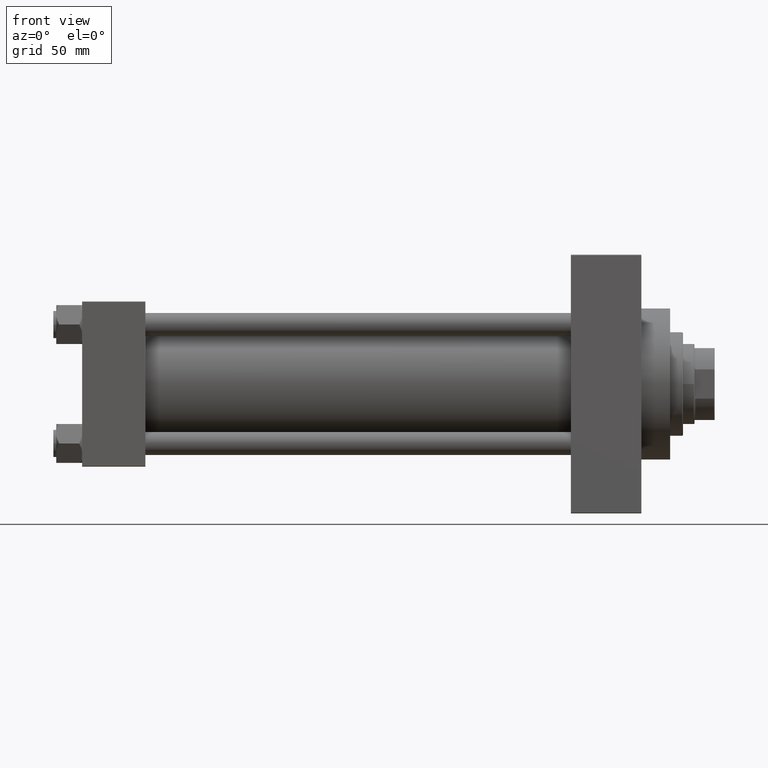
[diagram: clean part render]
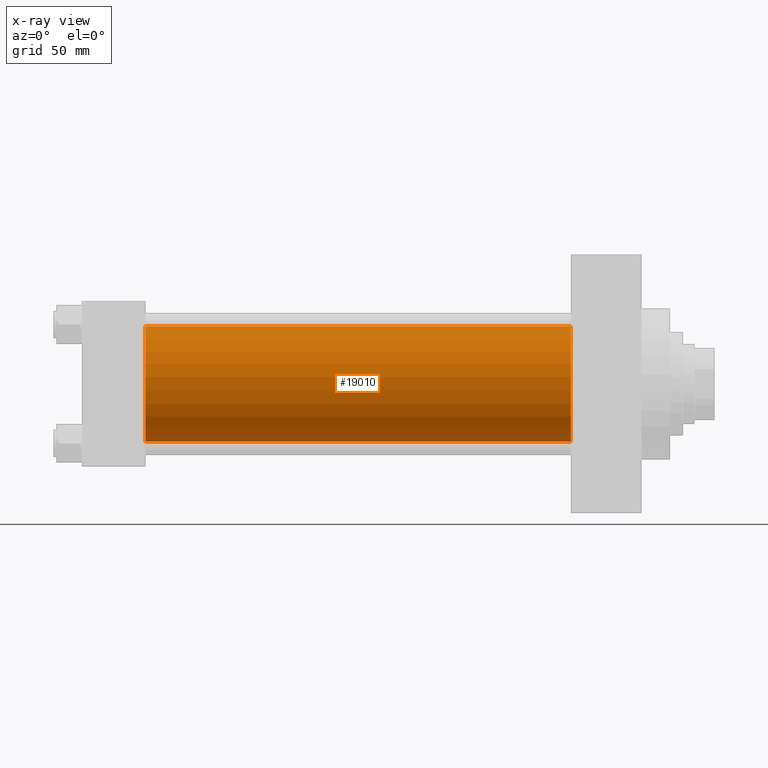
[diagram: x-ray — body ghosted, one internal face saturated and labeled with its STEP entity id]
A machine part, front view, then the same camera in x-ray: the body is ghosted and one INTERNAL B-rep face — a face not visible from any outside direction — is saturated and labeled: STEP entity #19010.
In plain terms, the highlighted cylindrical surface (partial cylindrical patch) has radius 40 mm, axis along (-1, -0, -0).
Its self-contained STEP definition (entity closure, byte-faithful):
#1384 = LINE ( 'NONE', #4909, #23793 ) ;
#2163 = DIRECTION ( 'NONE',  ( -1.000000000000000000, -0.000000000000000000, -0.000000000000000000 ) ) ;
#2633 = DIRECTION ( 'NONE',  ( 1.000000000000000000, 0.000000000000000000, 0.000000000000000000 ) ) ;
#4652 = ORIENTED_EDGE ( 'NONE', *, *, #6354, .T. ) ;
#4909 = CARTESIAN_POINT ( 'NONE',  ( 339.9999999999999432, 2.296501982624201990E-15, -40.00000000000000000 ) ) ;
#4958 = CARTESIAN_POINT ( 'NONE',  ( 339.9999999999999432, -2.602085213965210642E-15, 40.00000000000000000 ) ) ;
#5888 = CARTESIAN_POINT ( 'NONE',  ( 44.00000000000000000, -2.602085213965210642E-15, 0.000000000000000000 ) ) ;
#6354 = EDGE_CURVE ( 'NONE', #35156, #24173, #1384, .T. ) ;
#6438 = DIRECTION ( 'NONE',  ( 0.000000000000000000, 0.000000000000000000, -1.000000000000000000 ) ) ;
#7701 = CARTESIAN_POINT ( 'NONE',  ( 339.9999999999999432, 2.296501982624201990E-15, -40.00000000000000000 ) ) ;
#7915 = CYLINDRICAL_SURFACE ( 'NONE', #32976, 40.00000000000000000 ) ;
#9708 = AXIS2_PLACEMENT_3D ( 'NONE', #44502, #2633, #6438 ) ;
#11723 = VERTEX_POINT ( 'NONE', #4958 ) ;
#12586 = ORIENTED_EDGE ( 'NONE', *, *, #44861, .F. ) ;
#17101 = ORIENTED_EDGE ( 'NONE', *, *, #33492, .F. ) ;
#17442 = AXIS2_PLACEMENT_3D ( 'NONE', #5888, #44453, #25303 ) ;
#19010 = ADVANCED_FACE ( 'NONE', ( #34892 ), #7915, .F. ) ;
#20987 = CIRCLE ( 'NONE', #9708, 40.00000000000000000 ) ;
#23793 = VECTOR ( 'NONE', #27379, 1000.000000000000000 ) ;
#24173 = VERTEX_POINT ( 'NONE', #40531 ) ;
#24339 = EDGE_CURVE ( 'NONE', #11723, #35156, #20987, .T. ) ;
#24391 = VECTOR ( 'NONE', #2163, 1000.000000000000000 ) ;
#25303 = DIRECTION ( 'NONE',  ( 0.000000000000000000, 0.000000000000000000, -1.000000000000000000 ) ) ;
#27379 = DIRECTION ( 'NONE',  ( -1.000000000000000000, -0.000000000000000000, -0.000000000000000000 ) ) ;
#30125 = CARTESIAN_POINT ( 'NONE',  ( 339.9999999999999432, -2.602085213965210642E-15, 0.000000000000000000 ) ) ;
#30865 = DIRECTION ( 'NONE',  ( -1.000000000000000000, -0.000000000000000000, -0.000000000000000000 ) ) ;
#32737 = CIRCLE ( 'NONE', #17442, 40.00000000000000000 ) ;
#32976 = AXIS2_PLACEMENT_3D ( 'NONE', #30125, #30865, #34154 ) ;
#33409 = LINE ( 'NONE', #45227, #24391 ) ;
#33492 = EDGE_CURVE ( 'NONE', #11723, #38115, #33409, .T. ) ;
#34154 = DIRECTION ( 'NONE',  ( 0.000000000000000000, 0.000000000000000000, 1.000000000000000000 ) ) ;
#34892 = FACE_OUTER_BOUND ( 'NONE', #37285, .T. ) ;
#35156 = VERTEX_POINT ( 'NONE', #7701 ) ;
#37285 = EDGE_LOOP ( 'NONE', ( #44752, #4652, #12586, #17101 ) ) ;
#38115 = VERTEX_POINT ( 'NONE', #43085 ) ;
#40531 = CARTESIAN_POINT ( 'NONE',  ( 44.00000000000000000, 2.296501982624201990E-15, -40.00000000000000000 ) ) ;
#43085 = CARTESIAN_POINT ( 'NONE',  ( 44.00000000000000000, -2.602085213965210642E-15, 40.00000000000000000 ) ) ;
#44453 = DIRECTION ( 'NONE',  ( 1.000000000000000000, 0.000000000000000000, 0.000000000000000000 ) ) ;
#44502 = CARTESIAN_POINT ( 'NONE',  ( 339.9999999999999432, -2.602085213965210642E-15, 0.000000000000000000 ) ) ;
#44752 = ORIENTED_EDGE ( 'NONE', *, *, #24339, .T. ) ;
#44861 = EDGE_CURVE ( 'NONE', #38115, #24173, #32737, .T. ) ;
#45227 = CARTESIAN_POINT ( 'NONE',  ( 339.9999999999999432, -2.602085213965210642E-15, 40.00000000000000000 ) ) ;